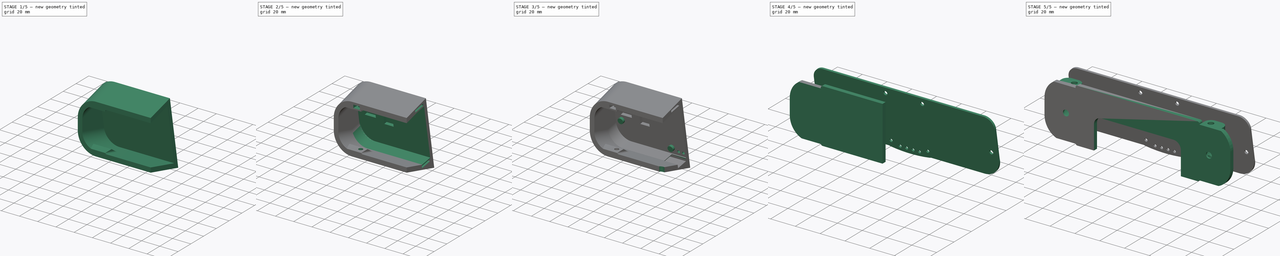
[diagram: build sequence overview — one tinted view per stage of 5, left to right]
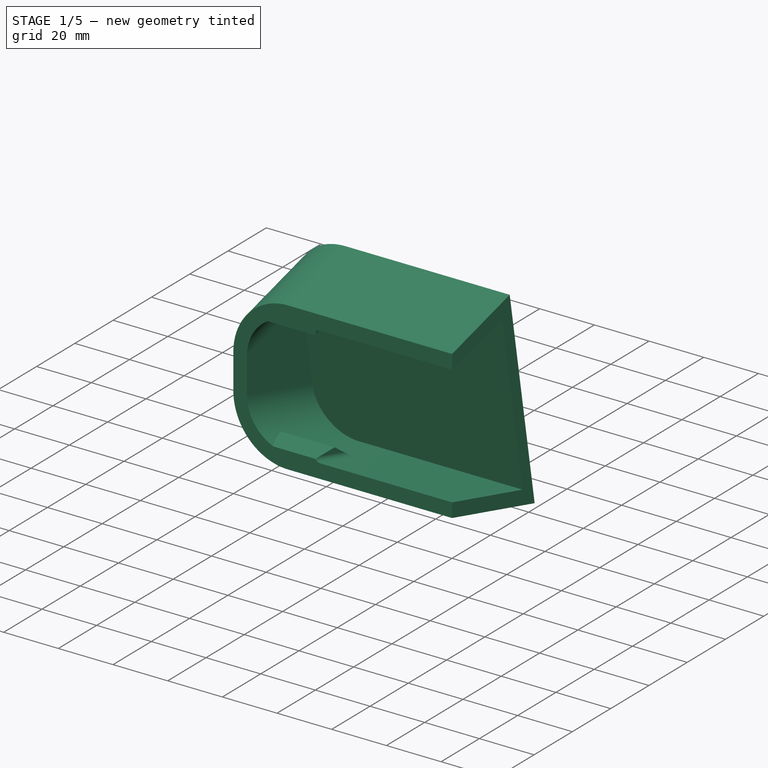
[diagram: stage 1 of 5 — iso view after this stage's code; geometry added in this stage tinted green]
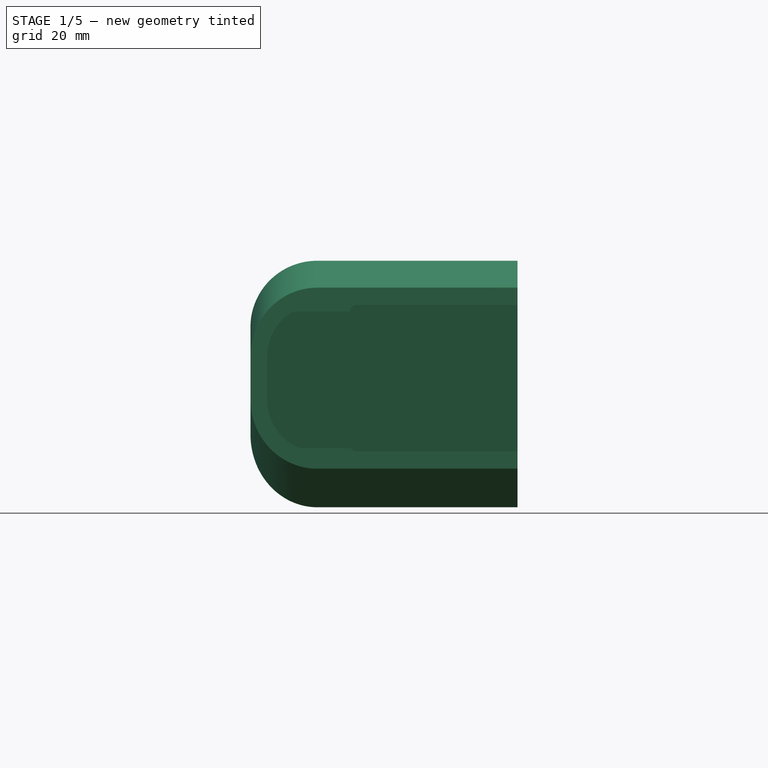
[diagram: stage 1 of 5 — front view after this stage's code; geometry added in this stage tinted green]
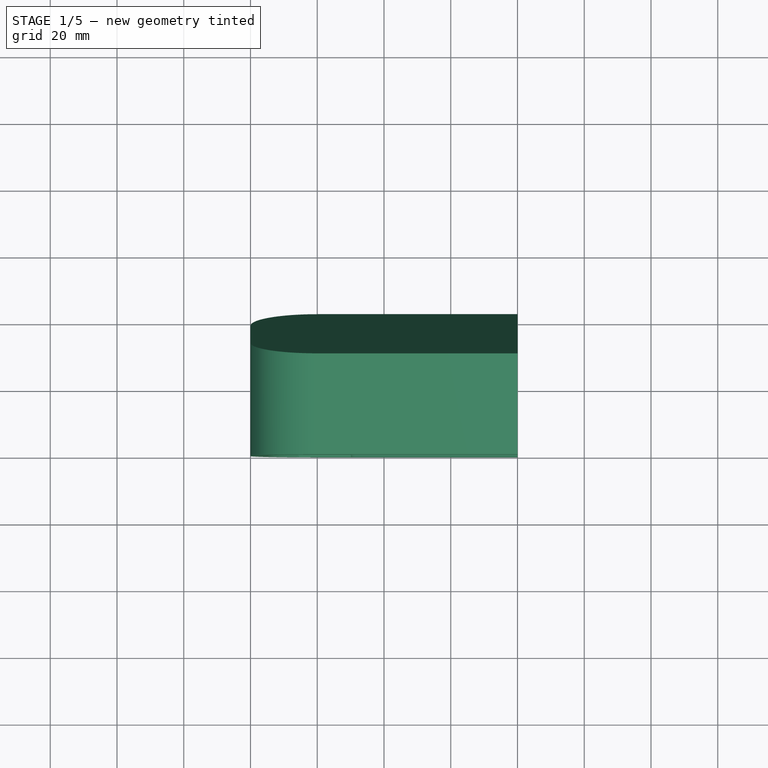
[diagram: stage 1 of 5 — top view after this stage's code; geometry added in this stage tinted green]
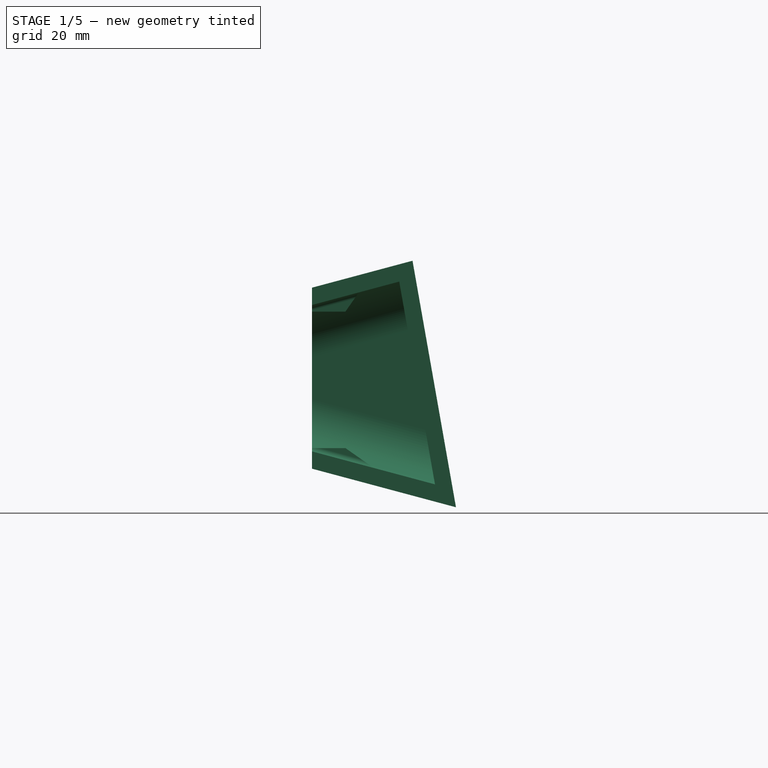
[diagram: stage 1 of 5 — right view after this stage's code; geometry added in this stage tinted green]
FCSTD DOCUMENT  (FreeCAD 0.21R33668 +26 (Git))
Label: wall-mount-v2
License: All rights reserved
LicenseURL: http://en.wikipedia.org/wiki/All_rights_reserved
objects: Sketcher::SketchObject×21, PartDesign::Pocket×12, PartDesign::Pad×9, PartDesign::SubShapeBinder×8, PartDesign::Body×4, PartDesign::Fillet×3, PartDesign::Hole×2, PartDesign::AdditivePipe×2, PartDesign::Mirrored×2, PartDesign::Thickness×1, PartDesign::SubtractivePipe×1, PartDesign::Plane×1, App::Part×1
note: 96 computed .brp shape members not serialized (recipe doc carries the construction recipe); baked Part::Feature solids carry a one-line shape summary decoded from their .brp

FEATURE [Sketcher::SketchObject] Sketch009
  FullyConstrained = true
  MapMode = 5
  Placement = pos=(0,0,0) rot=(0.57735,0.57735,0.57735;2.0944rad)
  Support = -> [YZ_Plane001]
  sketch-geometry (6):
    g0: LineSegment StartX=0 StartY=-5.18481 StartZ=0 EndX=0 EndY=49.0516 EndZ=0
    g1: LineSegment StartX=0 StartY=-5.18481 StartZ=0 EndX=43.131 EndY=-16.7417 EndZ=0
    g2: LineSegment StartX=0 StartY=49.0516 StartZ=0 EndX=30.1074 EndY=57.1188 EndZ=0
    g3: LineSegment StartX=30.1074 StartY=57.1188 StartZ=0 EndX=43.131 EndY=-16.7417 EndZ=0
    g4: GeomPoint X=40.179 Y=0 Z=0
    g5: LineSegment StartX=44.5202 StartY=-24.6202 StartZ=0 EndX=15 EndY=142.797 EndZ=0
  constraints (18):
    c: PointOnObject(g0,g-2)
    c: PointOnObject(g0,g-2)
    c: Coincident(g1,g0)
    c: Coincident(g2,g0)
    c: Coincident(g3,g2)
    c: Coincident(g3,g1)
    c: Angle(g3) = -1.39626
    c: PointOnObject(g4,g-1)
    c: PointOnObject(g4,g3)
    c: Distance(g1,g4) = 17  'PogoPinsFromBottom'
    c: Distance(g3) = 75
    c: Angle(g0,g2) = 1.8326
    c: PointOnObject(g2,g5)
    c: PointOnObject(g1,g5)
    c: Distance(g5) = 170
    c: Distance(g4,g5) = 25
    c: DistanceX(g-1,g5) = 15
    c: Angle(g1,g0) = 1.8326
FEATURE [PartDesign::Pad] Pad003
  Direction = (1,-2e-16,3e-16)
  Length = 80
  Length2 = 10
  Placement = pos=(0,0,0) rot=(0.57735,0.57735,0.57735;2.0944rad)
  Profile = -> Sketch009
  ReferenceAxis = -> Sketch009 [N_Axis]
  Reversed = true
  Type = 0
FEATURE [PartDesign::Fillet] Fillet
  Base = -> Pad003 [Edge7,Edge12]
  BaseFeature = -> Pad003
  Placement = pos=(0,0,0) rot=(0.57735,0.57735,0.57735;2.0944rad)
  Radius = 20
  SupportTransform = false
  UseAllEdges = false
FEATURE [PartDesign::Thickness] Thickness
  Base = -> Fillet [Face1,Face4]
  BaseFeature = -> Fillet
  Intersection = false
  Join = 0
  Mode = 0
  Reversed = true
  SupportTransform = false
  Value = 5
FEATURE [Sketcher::SketchObject] Sketch
  AttachmentOffset = pos=(0,0,-50) rot=(0,0,1;0rad)
  ExternalGeometry = -> [Thickness]
  FullyConstrained = true
  MapMode = 5
  Placement = pos=(-50,1.11e-14,-1.11e-14) rot=(0.57735,0.57735,0.57735;2.0944rad)
  Support = -> [Thickness]
  expr: .AttachmentOffset.Base.z = -Pad003.Length + Fillet.Radius + 10 mm
  sketch-geometry (4):
    g0: LineSegment StartX=0 StartY=-0.008433 StartZ=0 EndX=0 EndY=0.991567 EndZ=0
    g1: LineSegment StartX=0 StartY=0.991567 StartZ=0 EndX=10 EndY=0.991567 EndZ=0
    g2: LineSegment StartX=10 StartY=0.991567 StartZ=0 EndX=18.5123 EndY=-4.96878 EndZ=0
    g3: LineSegment StartX=18.5123 StartY=-4.96878 StartZ=0 EndX=0 EndY=-0.008433 EndZ=0
  constraints (11):
    c: Coincident(g0,g-3)
    c: Vertical(g0)
    c: Coincident(g1,g0)
    c: Horizontal(g1)
    c: Coincident(g2,g1)
    c: PointOnObject(g2,g-3)
    c: Coincident(g3,g2)
    c: Coincident(g3,g0)
    c: DistanceY(g0,g0) = 1
    c: DistanceX(g1,g1) = 10
    c: Angle(g-4,g2) = 0.785398
FEATURE [PartDesign::Pad] Pad
  BaseFeature = -> Thickness
  Direction = (1,-2e-16,2e-16)
  Length = 10
  Length2 = 10
  Profile = -> Sketch
  ReferenceAxis = -> Sketch [N_Axis]
  Refine = true
  Reversed = true
  Type = 2
FEATURE [Sketcher::SketchObject] Sketch010
  AttachmentOffset = pos=(0,0,-50) rot=(0,0,1;0rad)
  ExternalGeometry = -> [Pad]
  FullyConstrained = true
  MapMode = 5
  Placement = pos=(-50,1.11e-14,-1.11e-14) rot=(0.57735,0.57735,0.57735;2.0944rad)
  Support = -> [Pad]
  expr: .AttachmentOffset.Base.z = -Pad003.Length + Fillet.Radius + 10 mm
  sketch-geometry (4):
    g0: LineSegment StartX=0 StartY=43.8752 StartZ=0 EndX=0 EndY=41.8752 EndZ=0
    g1: LineSegment StartX=0 StartY=41.8752 StartZ=0 EndX=10 EndY=41.8752 EndZ=0
    g2: LineSegment StartX=10 StartY=41.8752 StartZ=0 EndX=14.0334 EndY=47.6354 EndZ=0
    g3: LineSegment StartX=0 StartY=43.8752 StartZ=0 EndX=14.0334 EndY=47.6354 EndZ=0
  constraints (11):
    c: Coincident(g0,g-3)
    c: PointOnObject(g0,g-2)
    c: Coincident(g1,g0)
    c: Horizontal(g1)
    c: Coincident(g2,g1)
    c: PointOnObject(g2,g-3)
    c: Coincident(g3,g0)
    c: Coincident(g3,g2)
    c: Vertical(g-5,g1)
    c: Angle(g2,g-4) = 0.785398
    c: DistanceY(g0,g0) = 2
FEATURE [PartDesign::Pad] Pad004
  BaseFeature = -> Pad
  Direction = (1,-2e-16,2e-16)
  Length = 10
  Length2 = 10
  Profile = -> Sketch010
  ReferenceAxis = -> Sketch010 [N_Axis]
  Refine = true
  Reversed = true
  Type = 2
FEATURE [Sketcher::SketchObject] Sketch011
  AttachmentOffset = pos=(0,0,-10) rot=(0,0,1;0rad)
  ExternalGeometry = -> [Pad004]
  FullyConstrained = true
  MapMode = 5
  Placement = pos=(2e-15,0,-9.00843) rot=(0,0,1;0rad)
  Support = -> [Pad004]
  sketch-geometry (4):
    g0: Circle CenterX=-55 CenterY=6.5 CenterZ=0 NormalX=0 NormalY=0 NormalZ=1 AngleXU=0 Radius=1.5
    g1: GeomPoint X=-60 Y=10 Z=0
    g2: GeomPoint X=-55 Y=1.83e-14 Z=0
    g3: GeomPoint X=-55 Y=5 Z=0
  constraints (8):
    c: Diameter(g0) = 3
    c: PointOnObject(g1,g-5)
    c: PointOnObject(g1,g-6)
    c: Symmetric(g-5,g-4,g2)
    c: PointOnObject(g3,g0)
    c: Vertical(g2,g3)
    c: Vertical(g3,g0)
    c: Distance(g2,g3) = 5
FEATURE [PartDesign::Fillet] Fillet001
  Base = -> Pad004 [Edge22,Edge44]
  BaseFeature = -> Pad004
  Radius = 1.6
  SupportTransform = false
  UseAllEdges = false
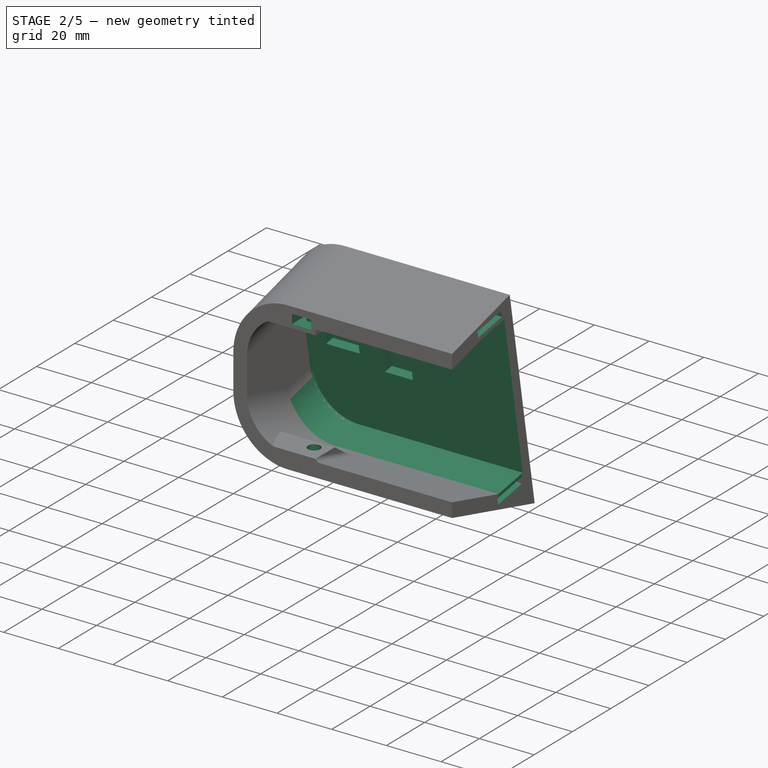
[diagram: stage 2 of 5 — iso view after this stage's code; geometry added in this stage tinted green]
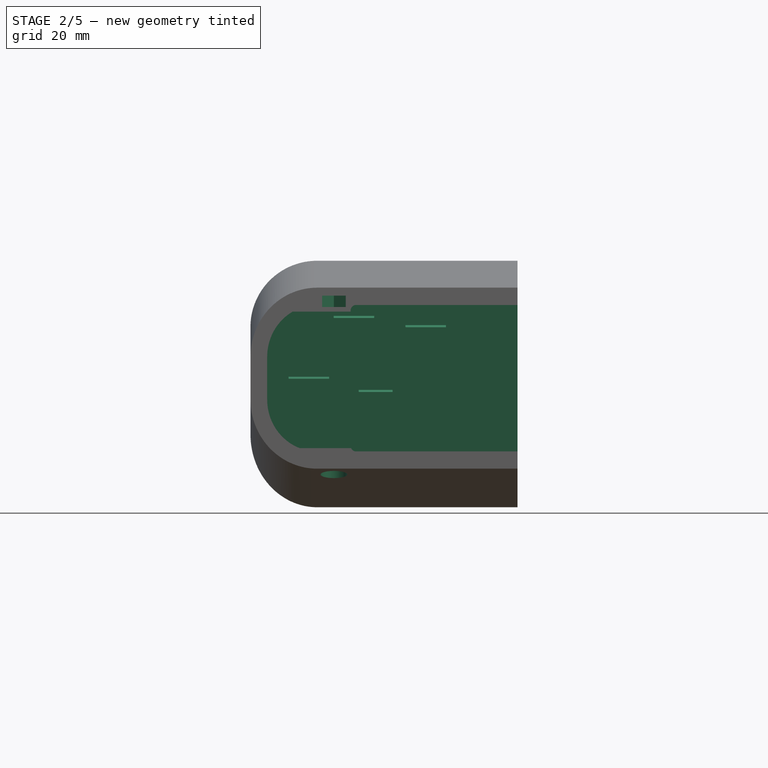
[diagram: stage 2 of 5 — front view after this stage's code; geometry added in this stage tinted green]
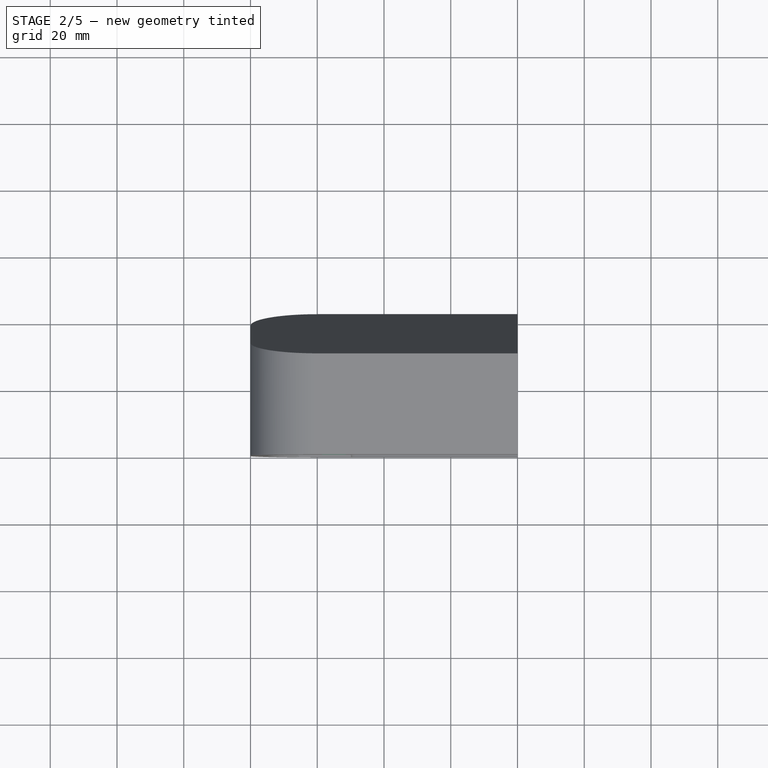
[diagram: stage 2 of 5 — top view after this stage's code; geometry added in this stage tinted green]
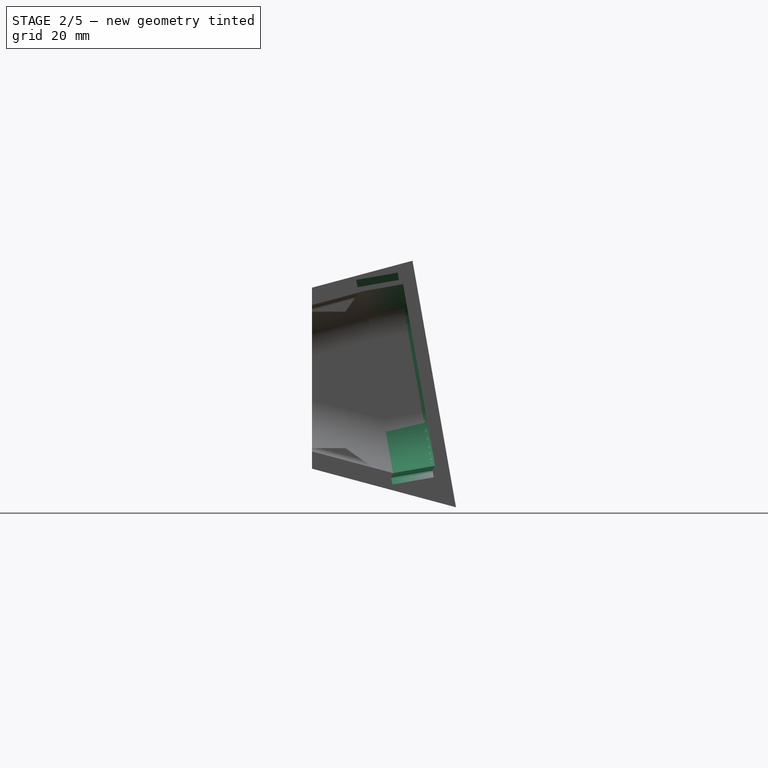
[diagram: stage 2 of 5 — right view after this stage's code; geometry added in this stage tinted green]
FEATURE [PartDesign::Hole] Hole
  BaseFeature = -> Fillet001
  CustomThreadClearance = 0
  Depth = 58.6
  DepthType = 0
  Diameter = 4.5
  DrillForDepth = false
  DrillPoint = 1
  DrillPointAngle = 155
  HoleCutCountersinkAngle = 90
  HoleCutCustomValues = false
  HoleCutDepth = 3.5
  HoleCutDiameter = 8
  HoleCutType = 3
  ModelThread = false
  Profile = -> Sketch011
  Reversed = true
  Tapered = false
  TaperedAngle = 90
  ThreadClass = 0
  ThreadDepth = 58.6
  ThreadDepthType = 0
  ThreadDirection = 0
  ThreadFit = 0
  ThreadSize = 11
  ThreadType = 1
  Threaded = false
  UseCustomThreadClearance = false
FEATURE [Sketcher::SketchObject] Sketch012
  AttachmentOffset = pos=(0,0,-1.4) rot=(0,0,1;0rad)
  ExternalGeometry = -> [Hole]
  FullyConstrained = true
  MapMode = 5
  Placement = pos=(-9.5e-15,0,43.2752) rot=(1,0,0;3.14159rad)
  Support = -> [Hole]
  sketch-geometry (10):
    g0: LineSegment StartX=-51.4493 StartY=-4.45 StartZ=0 EndX=-55 EndY=-2.4 EndZ=0
    g1: LineSegment StartX=-55 StartY=-2.4 StartZ=0 EndX=-58.5507 EndY=-4.45 EndZ=0
    g2: LineSegment StartX=-58.5507 StartY=-4.45 StartZ=0 EndX=-58.5507 EndY=-8.55 EndZ=0
    g3: LineSegment StartX=-58.5507 StartY=-8.55 StartZ=0 EndX=-55 EndY=-10.6 EndZ=0
    g4: LineSegment StartX=-55 StartY=-10.6 StartZ=0 EndX=-51.4493 EndY=-8.55 EndZ=0
    g5: LineSegment StartX=-51.4493 StartY=-8.55 StartZ=0 EndX=-51.4493 EndY=-4.45 EndZ=0
    g6: Circle CenterX=-55 CenterY=-6.5 CenterZ=0 NormalX=0 NormalY=0 NormalZ=1 AngleXU=0 Radius=4.1
    g7: LineSegment StartX=-51.4493 StartY=-4.45 StartZ=0 EndX=-51.4493 EndY=-3.38e-14 EndZ=0
    g8: LineSegment StartX=-58.5507 StartY=-3.64e-14 StartZ=0 EndX=-51.4493 EndY=-3.38e-14 EndZ=0
    g9: LineSegment StartX=-58.5507 StartY=-4.45 StartZ=0 EndX=-58.5507 EndY=-3.64e-14 EndZ=0
  constraints (24):
    c: Coincident(g0,g1)
    c: Coincident(g1,g2)
    c: Coincident(g2,g3)
    c: Coincident(g3,g4)
    c: Coincident(g4,g5)
    c: Coincident(g5,g0)
    c: Equal(g0, g1-g5) x5
    c: PointOnObject(g0,g6)
    c: PointOnObject(g1,g6)
    c: PointOnObject(g2,g6)
    c: PointOnObject(g3,g6)
    c: PointOnObject(g4,g6)
    c: PointOnObject(g5,g6)
    c: Diameter(g6) = 8.2
    c: Coincident(g7,g0)
    c: Vertical(g7)
    c: Coincident(g8,g7)
    c: Coincident(g9,g1)
    c: Coincident(g9,g8)
    c: PointOnObject(g3,g9)
    c: PointOnObject(g4,g7)
    c: PointOnObject(g7,g-4)
    c: PointOnObject(g8,g-4)
    c: Coincident(g6,g-3)
FEATURE [PartDesign::Pocket] Pocket
  BaseFeature = -> Hole
  Direction = (-2e-16,0,1)
  Length = 3.4
  Length2 = 5
  Profile = -> Sketch012
  ReferenceAxis = -> Sketch012 [N_Axis]
  Type = 0
FEATURE [Sketcher::SketchObject] Sketch025
  ExternalGeometry = -> [Pocket]
  FullyConstrained = true
  MapMode = 5
  Placement = pos=(0,0,0) rot=(0.57735,0.57735,0.57735;2.0944rad)
  Support = -> [Pocket]
  sketch-geometry (3):
    g0: LineSegment StartX=15.5057 StartY=48.03 StartZ=0 EndX=26.1309 EndY=50.877 EndZ=0
    g1: LineSegment StartX=26.1309 StartY=50.877 StartZ=0 EndX=26.2974 EndY=49.9328 EndZ=0
    g2: LineSegment StartX=26.2974 StartY=49.9328 StartZ=0 EndX=15.5057 EndY=48.03 EndZ=0
  constraints (8):
    c: Perpendicular(g2,g1)
    c: Distance(g0) = 11
    c: Coincident(g0,g-4)
    c: Coincident(g1,g0)
    c: Coincident(g2,g1)
    c: PointOnObject(g1,g-4)
    c: Coincident(g0,g2)
    c: PointOnObject(g0,g-3)
FEATURE [PartDesign::AdditivePipe] AdditivePipe
  AuxilleryCurvelinear = true
  AuxillerySpineTangent = false
  BaseFeature = -> Pocket
  Binormal = (0,0,0)
  Mode = 1
  Profile = -> Sketch025
  Refine = true
  Spine = -> Pocket [Edge39,Edge40]
  SpineTangent = false
  Transformation = 0
  Transition = 0
FEATURE [Sketcher::SketchObject] Sketch026
  ExternalGeometry = -> [AdditivePipe]
  FullyConstrained = true
  MapMode = 5
  Placement = pos=(0,0,0) rot=(0.57735,0.57735,0.57735;2.0944rad)
  Support = -> [AdditivePipe]
  sketch-geometry (3):
    g0: LineSegment StartX=36.8441 StartY=-9.88078 StartZ=0 EndX=24.2871 EndY=-6.51613 EndZ=0
    g1: LineSegment StartX=24.2871 StartY=-6.51613 StartZ=0 EndX=35.8901 EndY=-4.47021 EndZ=0
    g2: LineSegment StartX=35.8901 StartY=-4.47021 StartZ=0 EndX=36.8441 EndY=-9.88078 EndZ=0
  constraints (9):
    c: Coincident(g1,g0)
    c: Coincident(g2,g1)
    c: Coincident(g2,g0)
    c: Perpendicular(g1,g2)
    c: Coincident(g0,g-4)
    c: PointOnObject(g1,g-4)
    c: PointOnObject(g0,g-3)
    c: Distance(g2) = 5.49404
    c: Distance(g0) = 13
FEATURE [PartDesign::AdditivePipe] AdditivePipe001
  AuxilleryCurvelinear = true
  AuxillerySpineTangent = false
  BaseFeature = -> AdditivePipe
  Binormal = (0,0,0)
  Mode = 1
  Profile = -> Sketch026
  Refine = true
  Spine = -> AdditivePipe [Edge4,Edge34]
  SpineTangent = false
  Transformation = 0
  Transition = 0
FEATURE [Sketcher::SketchObject] Sketch027
  ExternalGeometry = -> [AdditivePipe001]
  FullyConstrained = true
  MapMode = 5
  Placement = pos=(-4e-16,0,0) rot=(0.57735,0.57735,0.57735;2.0944rad)
  Support = -> [AdditivePipe001]
  sketch-geometry (5):
    g0: LineSegment StartX=13.2505 StartY=51.3645 StartZ=0 EndX=13.6326 EndY=49.1979 EndZ=0
    g1: LineSegment StartX=13.6326 StartY=49.1979 StartZ=0 EndX=26.0411 EndY=51.3859 EndZ=0
    g2: LineSegment StartX=26.0411 StartY=51.3859 StartZ=0 EndX=25.6591 EndY=53.5524 EndZ=0
    g3: LineSegment StartX=25.6591 StartY=53.5524 StartZ=0 EndX=13.2505 EndY=51.3645 EndZ=0
    g4: GeomPoint X=13.0422 Y=52.5462 Z=0
  constraints (15):
    c: Coincident(g1,g0)
    c: Coincident(g2,g1)
    c: Coincident(g3,g2)
    c: Coincident(g3,g0)
    c: Distance(g2) = 2.2
    c: Distance(g0,g4) = 1.2
    c: PointOnObject(g4,g0)
    c: PointOnObject(g4,g-3)
    c: Parallel(g0,g2)
    c: Parallel(g2,g-4)
    c: Parallel(g-5,g1)
    c: Parallel(g1,g3)
    c: Distance(g2,g-4) = 5
    c: Distance(g1,g-5) = 1.47546
    c: Distance(g3) = 12.6
FEATURE [Sketcher::SketchObject] Sketch032
  ExternalGeometry = -> [AdditivePipe001,Sketch027]
  FullyConstrained = true
  MapMode = 5
  Placement = pos=(-4e-16,0,0) rot=(0.57735,0.57735,0.57735;2.0944rad)
  Support = -> [AdditivePipe001]
  sketch-geometry (6):
    g0: LineSegment StartX=36.0872 StartY=-5.58841 StartZ=0 EndX=36.4693 EndY=-7.75499 EndZ=0
    g1: LineSegment StartX=24.0607 StartY=-9.94295 StartZ=0 EndX=23.6787 EndY=-7.77638 EndZ=0
    g2: GeomPoint X=13.6326 Y=49.1979 Z=0
    g3: LineSegment StartX=23.6787 StartY=-7.77638 StartZ=0 EndX=36.0872 EndY=-5.58841 EndZ=0
    g4: LineSegment StartX=24.0607 StartY=-9.94295 StartZ=0 EndX=36.4693 EndY=-7.75499 EndZ=0
    g5: GeomPoint X=24.3733 Y=-11.7156 Z=0
  constraints (17):
    c: Coincident(g2,g-4)
    c: Coincident(g3,g1)
    c: Coincident(g3,g0)
    c: Coincident(g4,g1)
    c: Coincident(g4,g0)
    c: Distance(g0,g-7) = 5
    c: Distance(g1,g-3) = 1.63135
    c: Distance(g0,g-5) = 1.13545
    c: Equal(g1,g0)
    c: Equal(g0,g-6)
    c: Parallel(g1,g0)
    c: Parallel(g0,g-7)
    c: Parallel(g3,g-5)
    c: Equal(g3,g-4)
    c: PointOnObject(g5,g-3)
    c: PointOnObject(g5,g1)
    c: Distance(g5,g1) = 1.8
FEATURE [PartDesign::SubtractivePipe] SubtractivePipe
  AuxilleryCurvelinear = true
  AuxillerySpineTangent = false
  BaseFeature = -> AdditivePipe001
  Binormal = (0,0,0)
  Mode = 0
  Profile = -> Sketch027
  Refine = true
  Sections = -> [Sketch032]
  Spine = -> AdditivePipe001 [Edge83,Edge88,Edge49,Edge87,Edge28]
  SpineTangent = false
  Transformation = 1
  Transition = 0
FEATURE [PartDesign::SubShapeBinder] Binder
  BindCopyOnChange = 0
  BindMode = 0
  ClaimChildren = false
  Context = -> Body002 [Binder.]
  Fuse = false
  MakeFace = true
  OffsetFill = false
  OffsetIntersection = false
  OffsetJoinType = 0
  OffsetOpenResult = false
  PartialLoad = false
  Relative = true
  Support = -> [Body001[Hole.Face8]]
  _Version = 2
FEATURE [PartDesign::SubShapeBinder] Binder006
  BindCopyOnChange = 0
  BindMode = 0
  ClaimChildren = false
  Context = -> Body001 [Binder006.]
  Fuse = false
  MakeFace = true
  Offset = 0.1
  OffsetFill = false
  OffsetIntersection = false
  OffsetJoinType = 0
  OffsetOpenResult = false
  PartialLoad = false
  Relative = true
  Support = -> [Sketch017[Edge5,Edge8,Edge7,Edge6,Edge18,Edge19,Edge20,Edge17]]
  _Version = 2
FEATURE [PartDesign::SubShapeBinder] Binder007
  BindCopyOnChange = 0
  BindMode = 0
  ClaimChildren = false
  Context = -> Body001 [Binder007.]
  Fuse = false
  MakeFace = true
  OffsetFill = false
  OffsetIntersection = false
  OffsetJoinType = 0
  OffsetOpenResult = false
  PartialLoad = false
  Relative = true
  Support = -> [Sketch017[Edge1,Edge2]]
  _Version = 2
FEATURE [PartDesign::SubShapeBinder] Binder008
  BindCopyOnChange = 0
  BindMode = 0
  ClaimChildren = false
  Context = -> Body001 [Binder008.]
  Fuse = false
  MakeFace = true
  OffsetFill = false
  OffsetIntersection = false
  OffsetJoinType = 0
  OffsetOpenResult = false
  PartialLoad = false
  Relative = true
  Support = -> [Sketch017[Edge3,Edge4]]
  _Version = 2
FEATURE [PartDesign::Pocket] Pocket028
  BaseFeature = -> SubtractivePipe
  Direction = (4e-16,0.984808,0.173648)
  Length = 1
  Length2 = 5
  Profile = -> SubtractivePipe [Face26]
  Refine = true
  Type = 0
FEATURE [Sketcher::SketchObject] Sketch017
  ExternalGeometry = -> [Pocket,Pocket028]
  FullyConstrained = true
  MapMode = 5
  Placement = pos=(1.39e-14,35.0282,6.17642) rot=(1,0,0;1.74533rad)
  Support = -> [Pocket028]
  expr: Constraints[60] = 2.41 + 0.4
  expr: Constraints[63] = 1.26 + 0.4
  sketch-geometry (25):
    g0: GeomPoint X=-6.5e-15 Y=-6.59226 Z=0
    g1: Circle CenterX=-2.6 CenterY=-6.59226 CenterZ=0 NormalX=0 NormalY=0 NormalZ=1 AngleXU=0 Radius=1.405
    g2: Circle CenterX=-7.8 CenterY=-6.59226 CenterZ=0 NormalX=0 NormalY=0 NormalZ=1 AngleXU=0 Radius=1.405
    g3: Circle CenterX=-2.6 CenterY=-6.59226 CenterZ=0 NormalX=0 NormalY=0 NormalZ=1 AngleXU=0 Radius=0.83
    g4: Circle CenterX=-7.8 CenterY=-6.59226 CenterZ=0 NormalX=0 NormalY=0 NormalZ=1 AngleXU=0 Radius=0.83
    g5: LineSegment StartX=-37.5 StartY=23.9077 StartZ=0 EndX=-37.5 EndY=11.9077 EndZ=0
    g6: LineSegment StartX=-37.5 StartY=11.9077 StartZ=0 EndX=-47.5 EndY=11.9077 EndZ=0
    g7: LineSegment StartX=-47.5 StartY=11.9077 StartZ=0 EndX=-47.5 EndY=23.9077 EndZ=0
    g8: LineSegment StartX=-47.5 StartY=23.9077 StartZ=0 EndX=-37.5 EndY=23.9077 EndZ=0
    g9: GeomPoint X=-42.5 Y=17.9077 Z=0
    g10: LineSegment StartX=-68.5 StartY=25.9077 StartZ=0 EndX=-68.5 EndY=15.9077 EndZ=0
    g11: LineSegment StartX=-68.5 StartY=15.9077 StartZ=0 EndX=-56.5 EndY=15.9077 EndZ=0
    g12: LineSegment StartX=-56.5 StartY=15.9077 StartZ=0 EndX=-56.5 EndY=25.9077 EndZ=0
    g13: LineSegment StartX=-56.5 StartY=25.9077 StartZ=0 EndX=-68.5 EndY=25.9077 EndZ=0
    g14: GeomPoint X=-62.5 Y=20.9077 Z=0
    g15: LineSegment StartX=-55 StartY=44.4077 StartZ=0 EndX=-55 EndY=34.4077 EndZ=0
    g16: LineSegment StartX=-55 StartY=34.4077 StartZ=0 EndX=-43 EndY=34.4077 EndZ=0
    g17: LineSegment StartX=-43 StartY=34.4077 StartZ=0 EndX=-43 EndY=44.4077 EndZ=0
    g18: LineSegment StartX=-43 StartY=44.4077 StartZ=0 EndX=-55 EndY=44.4077 EndZ=0
    g19: GeomPoint X=-49 Y=39.4077 Z=0
    g20: LineSegment StartX=-33.5 StartY=41.6077 StartZ=0 EndX=-33.5 EndY=31.6077 EndZ=0
    g21: LineSegment StartX=-33.5 StartY=31.6077 StartZ=0 EndX=-21.5 EndY=31.6077 EndZ=0
    g22: LineSegment StartX=-21.5 StartY=31.6077 StartZ=0 EndX=-21.5 EndY=41.6077 EndZ=0
    g23: LineSegment StartX=-21.5 StartY=41.6077 StartZ=0 EndX=-33.5 EndY=41.6077 EndZ=0
    g24: GeomPoint X=-27.5 Y=36.6077 Z=0
  constraints (64):
    c: Coincident(g1,g3)
    c: Coincident(g2,g4)
    c: Coincident(g5,g6)
    c: Coincident(g6,g7)
    c: Coincident(g7,g8)
    c: Coincident(g8,g5)
    c: Horizontal(g6)
    c: Horizontal(g8)
    c: Vertical(g5)
    c: Vertical(g7)
    c: Symmetric(g6,g5,g9)
    c: Coincident(g10,g11)
    c: Coincident(g11,g12)
    c: Coincident(g12,g13)
    c: Coincident(g13,g10)
    c: Horizontal(g11)
    c: Horizontal(g13)
    c: Vertical(g10)
    c: Vertical(g12)
    c: Symmetric(g11,g10,g14)
    c: Coincident(g15,g16)
    c: Coincident(g16,g17)
    c: Coincident(g17,g18)
    c: Coincident(g18,g15)
    c: Horizontal(g16)
    c: Horizontal(g18)
    c: Vertical(g15)
    c: Vertical(g17)
    c: Symmetric(g16,g15,g19)
    c: Coincident(g20,g21)
    c: Coincident(g21,g22)
    c: Coincident(g22,g23)
    c: Coincident(g23,g20)
    c: Horizontal(g21)
    c: Horizontal(g23)
    c: Vertical(g20)
    c: Vertical(g22)
    c: Symmetric(g21,g20,g24)
    c: PointOnObject(g0,g-3)
    c: Horizontal(g1,g0)
    c: Horizontal(g0,g2)
    c: DistanceX(g1,g0) = 2.6
    c: DistanceX(g2,g1) = 5.2
    c: Equal(g8,g20)
    c: Equal(g20,g17)
    c: Equal(g17,g12)
    c: Equal(g7,g13)
    c: Equal(g13,g16)
    c: Equal(g16,g21)
    c: Distance(g6) = 10
    c: Distance(g5) = 12
    c: DistanceX(g9,g0) = 42.5
    c: DistanceY(g0,g9) = 24.5
    c: DistanceX(g24,g0) = 27.5
    c: DistanceY(g0,g24) = 43.2
    c: DistanceX(g14,g0) = 62.5
    c: DistanceY(g0,g14) = 27.5
    c: DistanceY(g0,g19) = 46
    c: DistanceX(g19,g0) = 49
    c: Equal(g1,g2)
    c: Diameter(g1) = 2.81
    c: Equal(g4,g3)
    c: Distance(g15,g-4) = 0.2
    c: Diameter(g3) = 1.66
FEATURE [PartDesign::Pocket] Pocket023
  BaseFeature = -> Pocket028
  Direction = (-4e-16,-0.984808,-0.173648)
  Length = 3.6
  Length2 = 5
  Offset = -1
  Profile = -> Binder006
  Reversed = true
  Type = 0
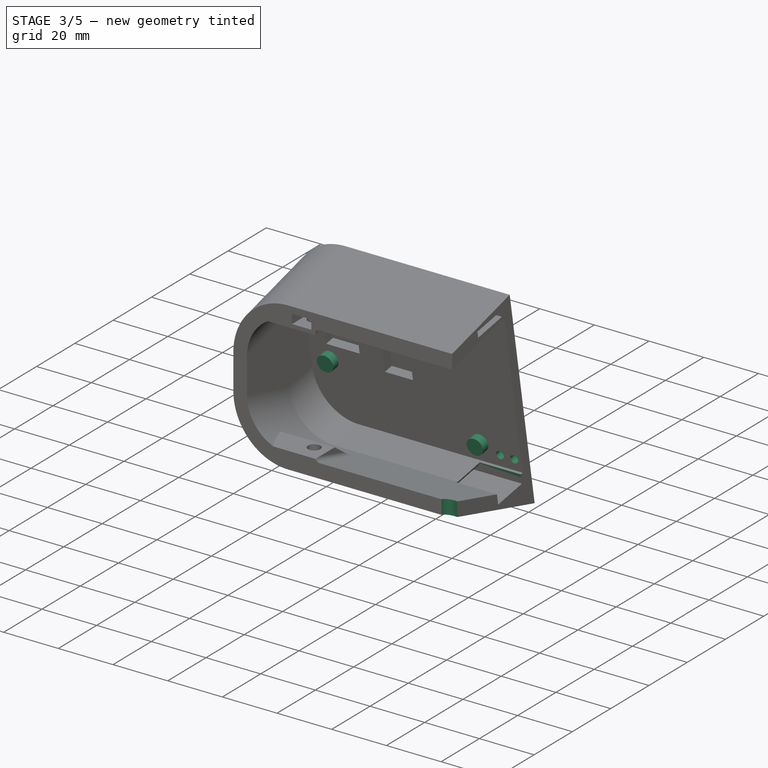
[diagram: stage 3 of 5 — iso view after this stage's code; geometry added in this stage tinted green]
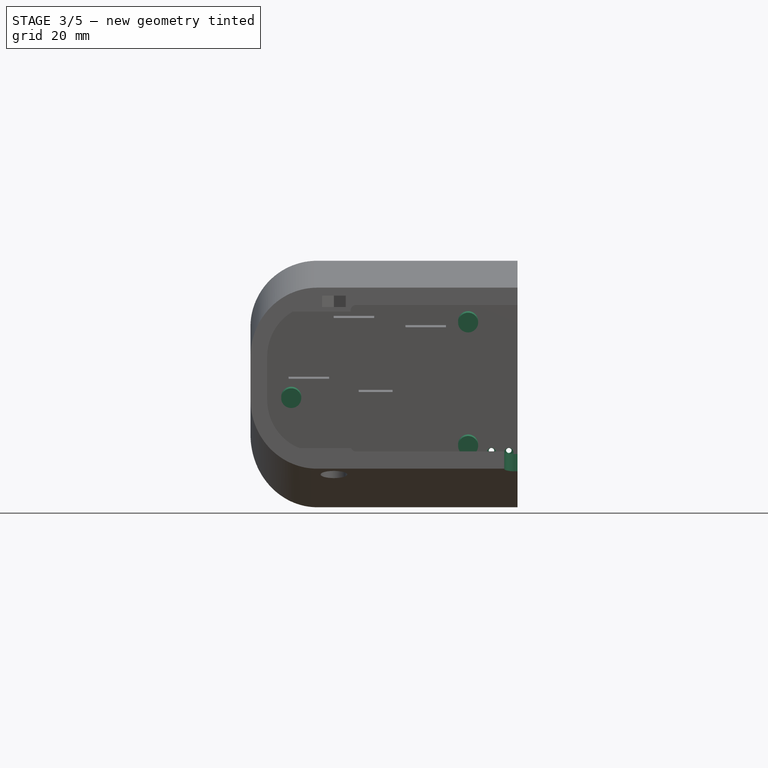
[diagram: stage 3 of 5 — front view after this stage's code; geometry added in this stage tinted green]
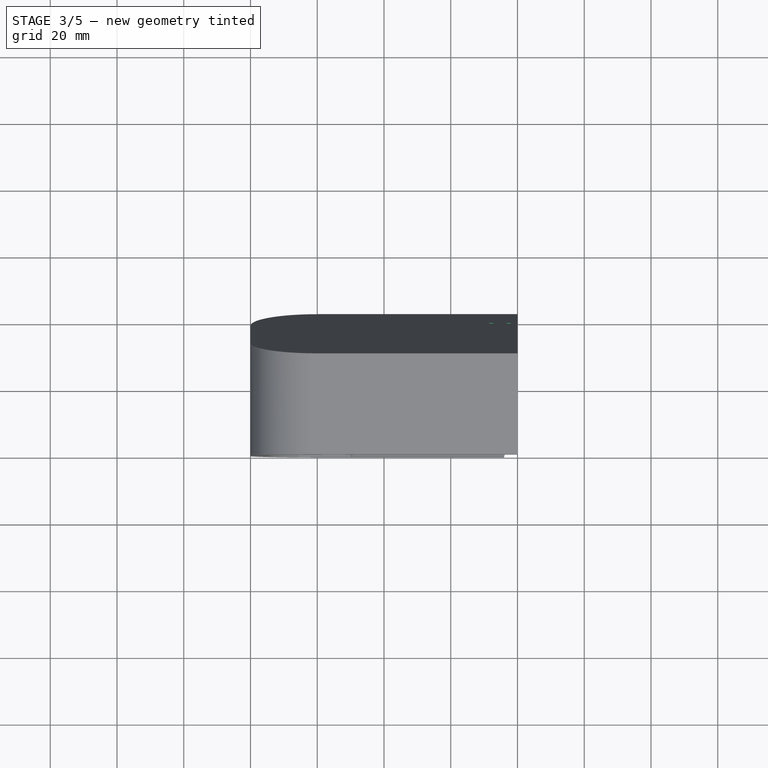
[diagram: stage 3 of 5 — top view after this stage's code; geometry added in this stage tinted green]
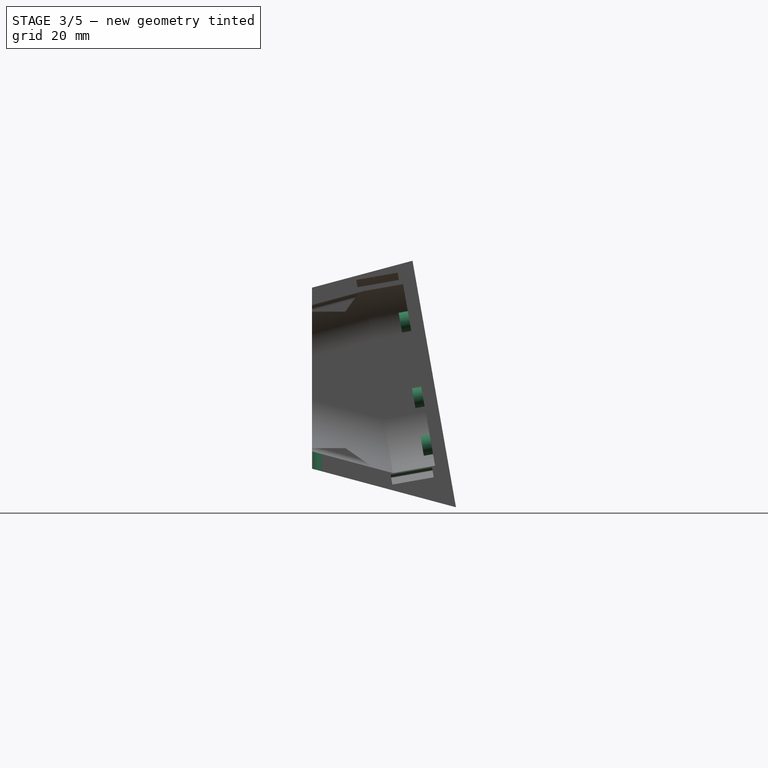
[diagram: stage 3 of 5 — right view after this stage's code; geometry added in this stage tinted green]
FEATURE [PartDesign::Pocket] Pocket024
  BaseFeature = -> Pocket023
  Direction = (-5e-16,-0.984808,-0.173648)
  Length = 3
  Length2 = 5
  Profile = -> Binder007
  Reversed = true
  Type = 0
FEATURE [PartDesign::Pocket] Pocket025
  BaseFeature = -> Pocket024
  Direction = (-5e-16,-0.984808,-0.173648)
  Length = 5
  Length2 = 5
  Profile = -> Binder008
  Refine = true
  Reversed = true
  Type = 1
FEATURE [Sketcher::SketchObject] Sketch019
  ExternalGeometry = -> [Pocket025]
  FullyConstrained = true
  MapMode = 5
  Placement = pos=(0,1e-16,0) rot=(1,0,0;1.5708rad)
  Support = -> [Pocket025]
  sketch-geometry (1):
    g0: LineSegment StartX=0 StartY=-0.008433 StartZ=0 EndX=0 EndY=43.8752 EndZ=0
  constraints (2):
    c: Coincident(g-4,g0)
    c: Coincident(g0,g-3)
FEATURE [Sketcher::SketchObject] Sketch039
  ExternalGeometry = -> [Pocket025]
  FullyConstrained = true
  MapMode = 5
  Placement = pos=(-4e-16,0,0) rot=(0.57735,0.57735,0.57735;2.0944rad)
  Support = -> [Pocket025]
  sketch-geometry (5):
    g0: LineSegment StartX=36.4693 StartY=-7.75499 StartZ=0 EndX=35.8901 EndY=-4.47021 EndZ=0
    g1: LineSegment StartX=24.0607 StartY=-9.94295 StartZ=0 EndX=23.4153 EndY=-6.28253 EndZ=0
    g2: LineSegment StartX=23.4153 StartY=-6.28253 StartZ=0 EndX=24.2871 EndY=-6.51613 EndZ=0
    g3: LineSegment StartX=24.2871 StartY=-6.51613 StartZ=0 EndX=35.8901 EndY=-4.47021 EndZ=0
    g4: LineSegment StartX=36.4693 StartY=-7.75499 StartZ=0 EndX=24.0607 EndY=-9.94295 EndZ=0
  constraints (12):
    c: Coincident(g0,g-6)
    c: PointOnObject(g0,g-4)
    c: Coincident(g1,g-5)
    c: PointOnObject(g1,g-3)
    c: Coincident(g2,g1)
    c: Coincident(g2,g-4)
    c: Coincident(g3,g2)
    c: Coincident(g3,g0)
    c: Coincident(g4,g0)
    c: Coincident(g4,g1)
    c: PointOnObject(g-5,g1)
    c: PointOnObject(g-6,g0)
FEATURE [PartDesign::Pocket] Pocket029
  BaseFeature = -> Pocket025
  Direction = (-1,-1e-16,-1e-16)
  Length = 15
  Length2 = 5
  Profile = -> Sketch039
  ReferenceAxis = -> Sketch039 [N_Axis]
  Type = 0
FEATURE [PartDesign::Fillet] Fillet002
  Base = -> Pocket029 [Edge48]
  BaseFeature = -> Pocket029
  Radius = 1
  SupportTransform = false
  UseAllEdges = false
FEATURE [Sketcher::SketchObject] Sketch030
  FullyConstrained = false
  MapMode = 5
  Placement = pos=(0,-0.00210825,-0.0078681) rot=(-1,0,0;0.261799rad)
  Support = -> [Fillet002]
  sketch-geometry (4):
    g0: LineSegment StartX=-4 StartY=0.00218262 StartZ=0 EndX=-9e-16 EndY=0.00218262 EndZ=0
    g1: LineSegment StartX=-1 StartY=3.00218 StartZ=0 EndX=0 EndY=3.00218 EndZ=0
    g2: LineSegment StartX=-9e-16 StartY=0.00218262 StartZ=0 EndX=0 EndY=3.00218 EndZ=0
    g3: ArcOfCircle CenterX=-1 CenterY=0.00218262 CenterZ=0 NormalX=0 NormalY=0 NormalZ=1 AngleXU=0 Radius=3 StartAngle=1.5708 EndAngle=3.14159
  constraints (9):
    c: Coincident(g2,g0)
    c: Coincident(g2,g1)
    c: Distance(g0) = 4
    c: PointOnObject(g1,g-2)
    c: Coincident(g3,g0)
    c: Tangent(g3,g1) = 1.5708
    c: Perpendicular(g3,g0)
    c: Parallel(g1,g0)
    c: Diameter(g3) = 6
FEATURE [PartDesign::Pocket] Pocket013
  BaseFeature = -> Fillet002
  Direction = (0,0,-1)
  Length = 5
  Length2 = 5
  Profile = -> Sketch030
  ReferenceAxis = -> Fillet002 [Edge34]
  Refine = true
  Type = 1
FEATURE [Sketcher::SketchObject] Sketch040
  ExternalGeometry = -> [Pocket013]
  FullyConstrained = true
  MapMode = 5
  Placement = pos=(1.39e-14,35.0282,6.17642) rot=(1,0,0;1.74533rad)
  Support = -> [Pocket013]
  sketch-geometry (3):
    g0: Circle CenterX=-14.8 CenterY=-4.10604 CenterZ=0 NormalX=0 NormalY=0 NormalZ=1 AngleXU=0 Radius=3
    g1: Circle CenterX=-67.8 CenterY=10.4077 CenterZ=0 NormalX=0 NormalY=0 NormalZ=1 AngleXU=0 Radius=3
    g2: Circle CenterX=-14.8 CenterY=33.4077 CenterZ=0 NormalX=0 NormalY=0 NormalZ=1 AngleXU=0 Radius=3
  constraints (9):
    c: Diameter(g0) = 6
    c: Vertical(g0,g2)
    c: Equal(g0,g1)
    c: Equal(g0,g2)
    c: Distance(g0,g-3) = 1
    c: DistanceX(g0,g-4) = 7
    c: DistanceY(g-4,g2) = 40
    c: DistanceX(g1,g-4) = 60
    c: DistanceY(g-4,g1) = 17
FEATURE [PartDesign::Pad] Pad014
  BaseFeature = -> Pocket013
  Direction = (-4e-16,-0.984808,-0.173648)
  Length = 10
  Length2 = 10
  Offset = 5.8
  Profile = -> Sketch040
  ReferenceAxis = -> Sketch040 [N_Axis]
  Type = 3
  UpToFace = -> Pocket013 [Face89]
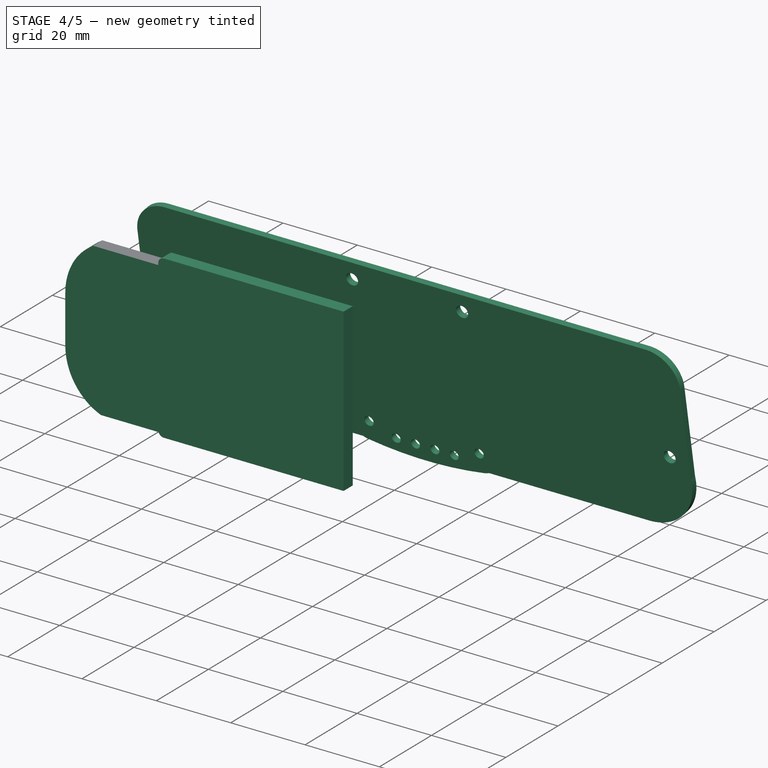
[diagram: stage 4 of 5 — iso view after this stage's code; geometry added in this stage tinted green]
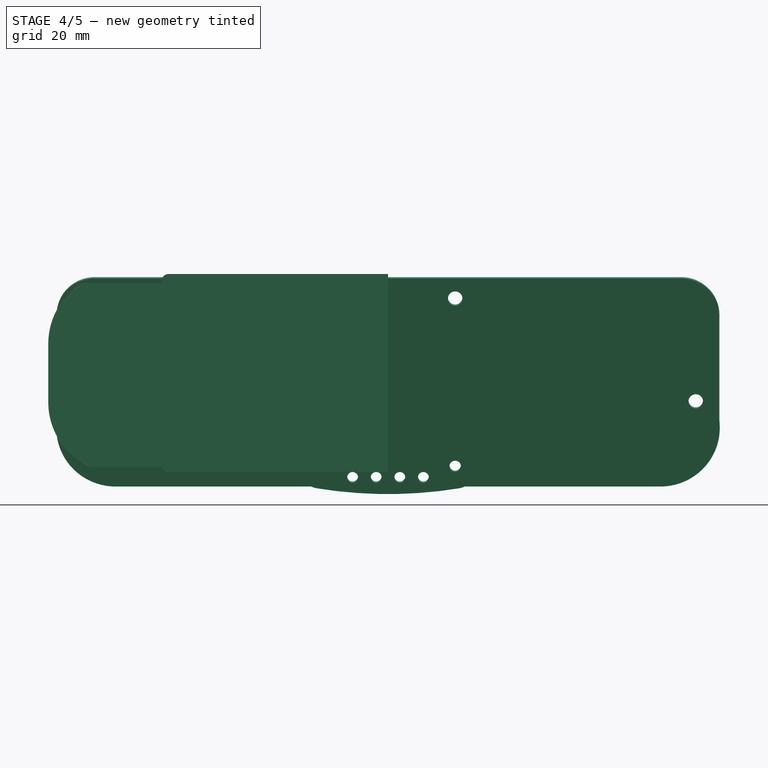
[diagram: stage 4 of 5 — front view after this stage's code; geometry added in this stage tinted green]
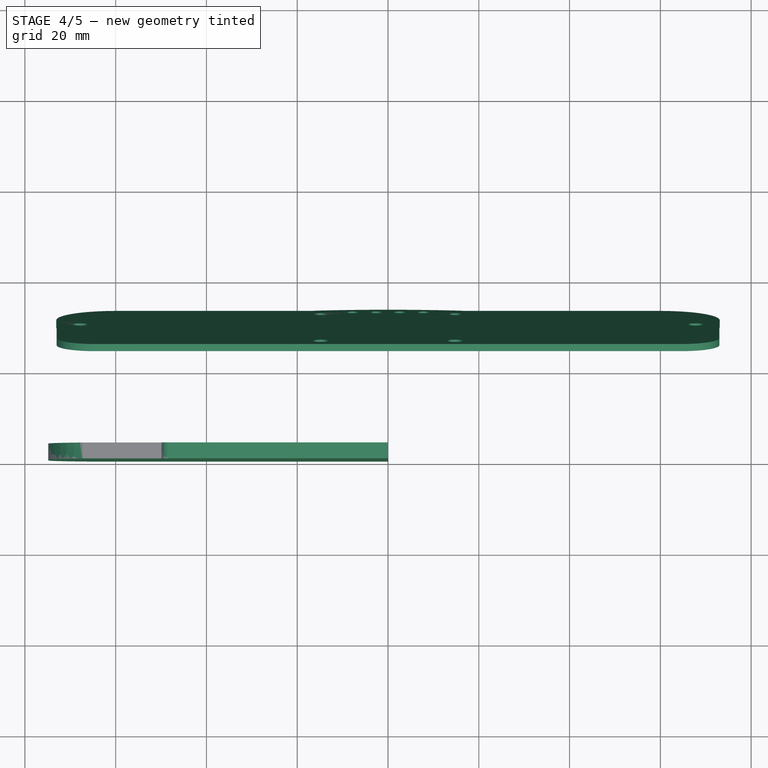
[diagram: stage 4 of 5 — top view after this stage's code; geometry added in this stage tinted green]
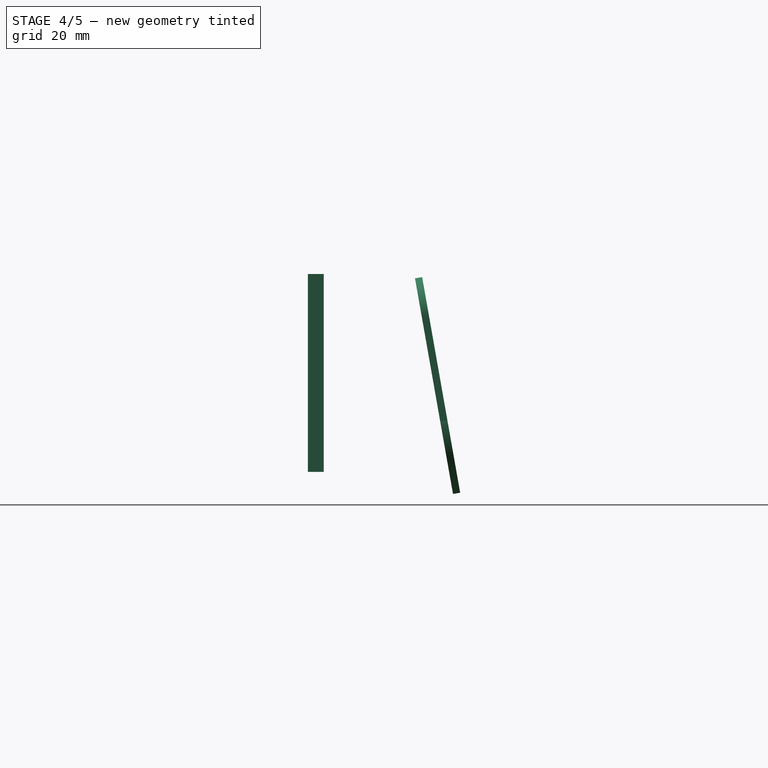
[diagram: stage 4 of 5 — right view after this stage's code; geometry added in this stage tinted green]
FEATURE [Sketcher::SketchObject] Sketch041
  ExternalGeometry = -> [Pad014]
  FullyConstrained = true
  MapMode = 5
  Placement = pos=(1.74e-14,32.2707,5.6902) rot=(1,0,0;1.74533rad)
  Support = -> [Pad014]
  sketch-geometry (3):
    g0: Circle CenterX=-14.8 CenterY=-4.10604 CenterZ=0 NormalX=0 NormalY=0 NormalZ=1 AngleXU=0 Radius=1.25
    g1: Circle CenterX=-67.8 CenterY=10.4077 CenterZ=0 NormalX=0 NormalY=0 NormalZ=1 AngleXU=0 Radius=1.25
    g2: Circle CenterX=-14.8 CenterY=33.4077 CenterZ=0 NormalX=0 NormalY=0 NormalZ=1 AngleXU=0 Radius=1.25
  constraints (6):
    c: Equal(g0,g2)
    c: Equal(g0,g1)
    c: Diameter(g0) = 2.5
    c: Coincident(g0,g-5)
    c: Coincident(g2,g-4)
    c: Coincident(g-3,g1)
FEATURE [PartDesign::Pocket] Pocket030
  BaseFeature = -> Pad014
  Direction = (5e-16,0.984808,0.173648)
  Length = 0
  Length2 = 5
  Offset = -1
  Profile = -> Sketch041
  ReferenceAxis = -> Sketch041 [N_Axis]
  Type = 3
  UpToFace = -> Pad014 [Face28]
FEATURE [Sketcher::SketchObject] Sketch043
  ExternalGeometry = -> [Fillet001]
  FullyConstrained = true
  MapMode = 5
  Placement = pos=(0,1e-16,0) rot=(1,0,0;1.5708rad)
  Support = -> [Fillet001]
  sketch-geometry (1):
    g0: LineSegment StartX=0 StartY=43.8752 StartZ=0 EndX=0 EndY=-0.008433 EndZ=0
  constraints (2):
    c: Coincident(g0,g-3)
    c: Coincident(g0,g-4)
FEATURE [PartDesign::SubShapeBinder] Binder013
  BindCopyOnChange = 0
  BindMode = 0
  ClaimChildren = false
  Context = -> Body002 [Binder013.]
  Fuse = false
  MakeFace = true
  Offset = -0.15
  OffsetFill = false
  OffsetIntersection = false
  OffsetJoinType = 0
  OffsetOpenResult = false
  PartialLoad = false
  Relative = true
  Support = -> [Body001[Fillet001.Edge1,Sketch043.Edge1,Fillet001.Edge8,Fillet001.Edge10,Fillet001.Edge12,Fillet001.Edge14,Fillet001.Edge16,Fillet001.Edge18]]
  _Version = 2
FEATURE [PartDesign::Pad] Pad005
  Direction = (4e-16,1,-2e-16)
  Length = 4
  Length2 = 10
  Profile = -> Binder013
  Type = 0
FEATURE [PartDesign::Pad] Pad011
  BaseFeature = -> Pad005
  Direction = (1,-4e-16,0)
  Length = 10
  Length2 = 10
  Profile = -> Pad005 [Face12]
  Refine = true
  Type = 3
  UpToFace = -> YZ_Plane002
FEATURE [PartDesign::Pocket] Pocket026
  BaseFeature = -> Pad011
  Direction = (4e-16,1,-2e-16)
  Length = 0.5
  Length2 = 5
  Profile = -> Pad011 [Face13]
  Type = 0
FEATURE [PartDesign::Body] Body002  label="Mouting Plate"
  Group = -> [Binder013,Binder,Pad005,Pad011,Sketch020,Pocket026,Pad008,Sketch021,Pocket022,Pocket007,Hole001,Sketch022,Pocket010,Mirrored]
  Origin = -> Origin002
  Tip = -> Mirrored
FEATURE [PartDesign::Mirrored] Mirrored001
  BaseFeature = -> Pocket030
  MirrorPlane = -> Pocket030 [Face7]
  Originals = -> [Pad003,Fillet,Thickness,Pad,Pad004,Fillet001,Hole,Pocket,AdditivePipe,AdditivePipe001,SubtractivePipe,Pocket028,Pocket023,Pocket024,Pocket025,Pocket029,Fillet002,Pocket013,Pad014,Pocket030]
  Refine = true
FEATURE [PartDesign::Body] Body001  label="Housing"
  Group = -> [Sketch009,Pad003,Fillet,Thickness,Sketch,Pad,Sketch010,Pad004,Sketch011,Fillet001,Sketch043,Hole,Sketch012,Pocket,Sketch025,Sketch026,AdditivePipe,AdditivePipe001,Sketch027,Sketch032,SubtractivePipe,Pocket028,Sketch017,Binder006,Pocket023,Binder007,Pocket024,Binder008,Pocket025,Sketch019,Sketch030,Sketch039,Pocket029,Fillet002,Pocket013,Sketch040,Pad014,Sketch041,Pocket030,Mirrored001]
  Origin = -> Origin001
  Tip = -> Mirrored001
FEATURE [PartDesign::SubShapeBinder] Binder014
  BindCopyOnChange = 0
  BindMode = 0
  ClaimChildren = false
  Context = -> Body003 [Binder014.]
  Fuse = false
  MakeFace = true
  OffsetFill = false
  OffsetIntersection = false
  OffsetJoinType = 0
  OffsetOpenResult = false
  PartialLoad = false
  Relative = true
  Support = -> [Body001[Mirrored001.Face154,Mirrored001.Face162,Mirrored001.Face166,Mirrored001.Face63,Mirrored001.Face170,Mirrored001.Face158,Mirrored001.Face150]]
  _Version = 2
FEATURE [PartDesign::Plane] DatumPlane
  Length = 167.236
  MapMode = 45
  Placement = pos=(6.1e-15,29.7267,20.1185) rot=(-1,0,0;1.39626rad)
  ResizeMode = 0
  Support = -> [Binder014]
  Width = 98.4577
FEATURE [PartDesign::SubShapeBinder] Binder015
  BindCopyOnChange = 0
  BindMode = 0
  ClaimChildren = false
  Context = -> Body003 [Binder015.]
  Fuse = false
  MakeFace = true
  Offset = -2
  OffsetFill = false
  OffsetIntersection = false
  OffsetJoinType = 0
  OffsetOpenResult = false
  PartialLoad = false
  Relative = true
  Support = -> [Binder014[Edge16,Edge15,Edge14,Edge13,Edge20,Edge19,Edge18,Edge17]]
  _Version = 2
FEATURE [Sketcher::SketchObject] Sketch044
  ExternalGeometry = -> [Binder014,Binder015]
  FullyConstrained = true
  MapMode = 5
  Placement = pos=(6.1e-15,29.7267,20.1185) rot=(-1,0,0;1.39626rad)
  Support = -> [DatumPlane]
  sketch-geometry (20):
    g0: ArcOfCircle CenterX=-64.6142 CenterY=-14.8996 CenterZ=0 NormalX=0 NormalY=0 NormalZ=1 AngleXU=0 Radius=8.3858 StartAngle=3.14159 EndAngle=4.71239
    g1: ArcOfCircle CenterX=64.6142 CenterY=-14.8996 CenterZ=0 NormalX=0 NormalY=0 NormalZ=1 AngleXU=0 Radius=8.3858 StartAngle=4.71239 EndAngle=6.28319
    g2: ArcOfCircle CenterX=60 CenterY=10.2028 CenterZ=0 NormalX=0 NormalY=0 NormalZ=1 AngleXU=0 Radius=13.0826 StartAngle=6.17074 EndAngle=7.85398
    g3: ArcOfCircle CenterX=-60 CenterY=10.2028 CenterZ=0 NormalX=0 NormalY=0 NormalZ=1 AngleXU=0 Radius=13.0826 StartAngle=1.5708 EndAngle=3.25404
    g4: LineSegment StartX=-73 StartY=8.73472 StartZ=0 EndX=-73 EndY=-14.8996 EndZ=0
    g5: LineSegment StartX=73 StartY=8.73472 StartZ=0 EndX=73 EndY=-14.8996 EndZ=0
    g6: LineSegment StartX=-60 StartY=23.2854 StartZ=0 EndX=60 EndY=23.2854 EndZ=0
    g7: LineSegment StartX=-64.6142 StartY=-23.2854 StartZ=0 EndX=64.6142 EndY=-23.2854 EndZ=0
    g8: LineSegment StartX=-14.8 StartY=-21.7569 StartZ=0 EndX=-14.8 EndY=-23.2854 EndZ=0
    g9: LineSegment StartX=-14.8 StartY=23.2854 StartZ=0 EndX=-14.8 EndY=21.7569 EndZ=0
    g10: Circle CenterX=-67.8 CenterY=4.24311 CenterZ=0 NormalX=0 NormalY=0 NormalZ=1 AngleXU=0 Radius=1.6
    g11: Circle CenterX=-14.8 CenterY=-18.7569 CenterZ=0 NormalX=0 NormalY=0 NormalZ=1 AngleXU=0 Radius=1.6
    g12: Circle CenterX=-14.8 CenterY=18.7569 CenterZ=0 NormalX=0 NormalY=0 NormalZ=1 AngleXU=0 Radius=1.6
    g13: Circle CenterX=14.8 CenterY=-18.7569 CenterZ=0 NormalX=0 NormalY=0 NormalZ=1 AngleXU=0 Radius=1.6
    g14: Circle CenterX=14.8 CenterY=18.7569 CenterZ=0 NormalX=0 NormalY=0 NormalZ=1 AngleXU=0 Radius=1.6
    g15: Circle CenterX=67.8 CenterY=4.24311 CenterZ=0 NormalX=0 NormalY=0 NormalZ=1 AngleXU=0 Radius=1.6
    g16: Circle CenterX=7.8 CenterY=21.2431 CenterZ=0 NormalX=0 NormalY=0 NormalZ=1 AngleXU=0 Radius=1.2
    g17: Circle CenterX=2.6 CenterY=21.2431 CenterZ=0 NormalX=0 NormalY=0 NormalZ=1 AngleXU=0 Radius=1.2
    g18: Circle CenterX=-2.6 CenterY=21.2431 CenterZ=0 NormalX=0 NormalY=0 NormalZ=1 AngleXU=0 Radius=1.2
    g19: Circle CenterX=-7.8 CenterY=21.2431 CenterZ=0 NormalX=0 NormalY=0 NormalZ=1 AngleXU=0 Radius=1.2
  constraints (44):
    c: Coincident(g0,g-12)
    c: Coincident(g1,g-13)
    c: Coincident(g2,g-13)
    c: Coincident(g2,g-9)
    c: Coincident(g3,g-11)
    c: Coincident(g3,g-12)
    c: Coincident(g4,g3)
    c: Coincident(g5,g2)
    c: Tangent(g6,g2) = 1.5708
    c: Tangent(g6,g3) = 1.5708
    c: Horizontal(g7)
    c: Tangent(g5,g1) = 1.5708
    c: Tangent(g7,g1) = -1.5708
    c: Tangent(g7,g0) = -1.5708
    c: Tangent(g4,g0) = -1.5708
    c: PointOnObject(g8,g-5)
    c: PointOnObject(g8,g7)
    c: Perpendicular(g7,g8)
    c: PointOnObject(g9,g6)
    c: PointOnObject(g9,g-4)
    c: Perpendicular(g6,g9)
    c: Equal(g9,g8)
    c: Perpendicular(g-4,g9)
    c: Perpendicular(g-5,g8)
    c: Coincident(g10,g-3)
    c: Coincident(g11,g-5)
    c: Coincident(g12,g-4)
    c: Coincident(g13,g-6)
    c: Coincident(g14,g-7)
    c: Coincident(g15,g-8)
    c: Equal(g15,g13)
    c: Equal(g15,g14)
    c: Equal(g15,g12)
    c: Equal(g15,g11)
    c: Equal(g15,g10)
    c: Diameter(g15) = 3.2
    c: Coincident(g16,g-14)
    c: Coincident(g17,g-15)
    c: Coincident(g18,g-16)
    c: Coincident(g19,g-17)
    c: Equal(g19,g18)
    c: Equal(g19,g17)
    c: Equal(g19,g16)
    c: Diameter(g19) = 2.4
FEATURE [PartDesign::Pad] Pad015
  Direction = (0,0.984808,0.173648)
  Length = 1.6
  Length2 = 10
  Placement = pos=(7e-15,29.7267,20.1185) rot=(-1,0,0;1.39626rad)
  Profile = -> Sketch044
  ReferenceAxis = -> Sketch044 [N_Axis]
  Reversed = true
  Type = 0
FEATURE [PartDesign::Body] Body003  label="Board"
  Group = -> [Binder014,DatumPlane,Sketch044,Binder015,Pad015]
  Origin = -> Origin003
  Tip = -> Pad015
FEATURE [App::Part] Part
  Origin = -> Origin
FEATURE [PartDesign::SubShapeBinder] Binder016
  BindCopyOnChange = 0
  BindMode = 0
  ClaimChildren = false
  Context = -> Body [Binder016.]
  Fuse = false
  MakeFace = true
  OffsetFill = false
  OffsetIntersection = false
  OffsetJoinType = 0
  OffsetOpenResult = false
  PartialLoad = false
  Relative = true
  Support = -> [Body001[Mirrored001.Face154,Mirrored001.Edge262,Mirrored001.Edge261,Mirrored001.Edge263,Mirrored001.Edge264,Mirrored001.Face162]]
  _Version = 2
FEATURE [Sketcher::SketchObject] Sketch045
  ExternalGeometry = -> [Binder016]
  FullyConstrained = true
  MapMode = 5
  Placement = pos=(1.74e-14,32.2707,5.6902) rot=(1,0,0;1.74533rad)
  Support = -> [Binder016]
  sketch-geometry (12):
    g0: ArcOfCircle CenterX=-14.8 CenterY=-4.10604 CenterZ=0 NormalX=0 NormalY=0 NormalZ=1 AngleXU=0 Radius=5 StartAngle=1.40675 EndAngle=4.54835
    g1: ArcOfCircle CenterX=14.8 CenterY=-4.10604 CenterZ=0 NormalX=0 NormalY=0 NormalZ=1 AngleXU=0 Radius=5 StartAngle=4.87643 EndAngle=8.01803
    g2: ArcOfCircle CenterX=-7.95e-14 CenterY=85.3031 CenterZ=0 NormalX=0 NormalY=0 NormalZ=1 AngleXU=0 Radius=95.6258 StartAngle=4.54835 EndAngle=4.87643
    g3: ArcOfCircle CenterX=-7.95e-14 CenterY=85.3031 CenterZ=0 NormalX=0 NormalY=0 NormalZ=1 AngleXU=0 Radius=85.6258 StartAngle=4.54835 EndAngle=4.87643
    g4: Circle CenterX=-7.8 CenterY=-6.59226 CenterZ=0 NormalX=0 NormalY=0 NormalZ=1 AngleXU=0 Radius=1.6
    g5: LineSegment StartX=-8.08756 StartY=-9.98008 StartZ=0 EndX=-7.93532 EndY=-8.18653 EndZ=0
    g6: Circle CenterX=-7.8 CenterY=-6.59226 CenterZ=0 NormalX=0 NormalY=0 NormalZ=1 AngleXU=0 Radius=1.405
    g7: Circle CenterX=-2.6 CenterY=-6.59226 CenterZ=0 NormalX=0 NormalY=0 NormalZ=1 AngleXU=0 Radius=1.405
    g8: Circle CenterX=2.6 CenterY=-6.59226 CenterZ=0 NormalX=0 NormalY=0 NormalZ=1 AngleXU=0 Radius=1.405
    g9: Circle CenterX=7.8 CenterY=-6.59226 CenterZ=0 NormalX=0 NormalY=0 NormalZ=1 AngleXU=0 Radius=1.405
    g10: Circle CenterX=-14.8 CenterY=-4.10604 CenterZ=0 NormalX=0 NormalY=0 NormalZ=1 AngleXU=0 Radius=1.25
    g11: Circle CenterX=14.8 CenterY=-4.10604 CenterZ=0 NormalX=0 NormalY=0 NormalZ=1 AngleXU=0 Radius=1.25
  constraints (27):
    c: Coincident(g0,g-4)
    c: Coincident(g1,g-6)
    c: Tangent(g2,g1) = -1.5708
    c: Tangent(g2,g0) = -1.5708
    c: Diameter(g0) = 10
    c: Tangent(g3,g1) = 1.5708
    c: Coincident(g2,g3)
    c: Diameter(g4) = 3.2
    c: PointOnObject(g5,g2)
    c: PointOnObject(g5,g4)
    c: Perpendicular(g4,g5)
    c: Perpendicular(g2,g5)
    c: Coincident(g4,g-10)
    c: Distance(g5) = 1.8
    c: Tangent(g3,g0) = 1.5708
    c: Coincident(g6,g4)
    c: Coincident(g7,g-9)
    c: Coincident(g8,g-8)
    c: Coincident(g9,g-7)
    c: Equal(g9,g-7)
    c: Equal(g8,g-8)
    c: Equal(g-9,g7)
    c: Equal(g6,g-10)
    c: Coincident(g10,g0)
    c: Coincident(g11,g1)
    c: Equal(g10,g-4)
    c: Equal(g-5,g11)
FEATURE [PartDesign::Pad] Pad016
  Direction = (-5e-16,-0.984808,-0.173648)
  Length = 1.6
  Length2 = 10
  Profile = -> Sketch045
  ReferenceAxis = -> Sketch045 [N_Axis]
  Type = 0
FEATURE [PartDesign::Body] Body
  Group = -> [Binder016,Sketch045,Pad016]
  Origin = -> Origin004
  Tip = -> Pad016
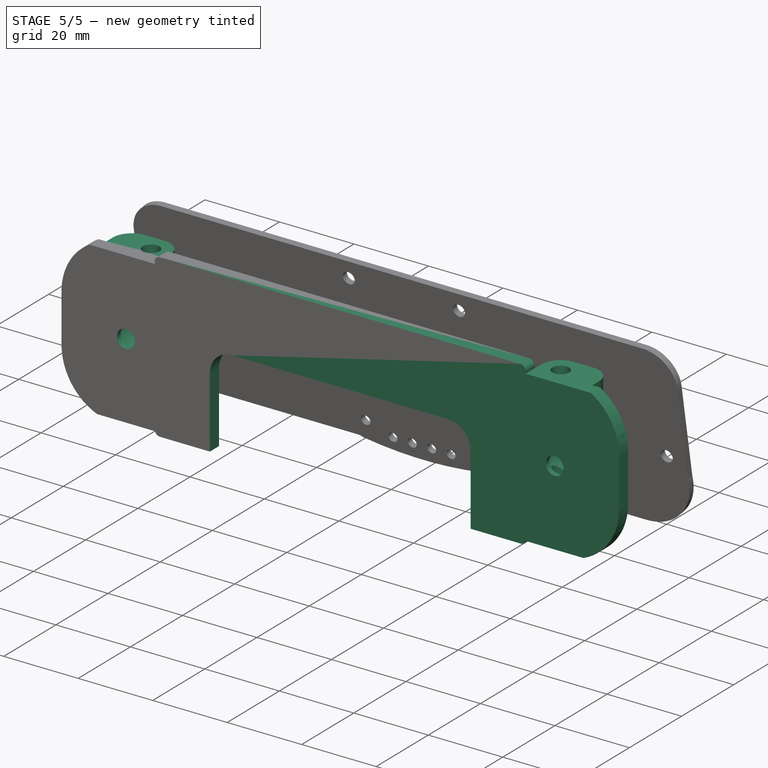
[diagram: stage 5 of 5 — iso view after this stage's code; geometry added in this stage tinted green]
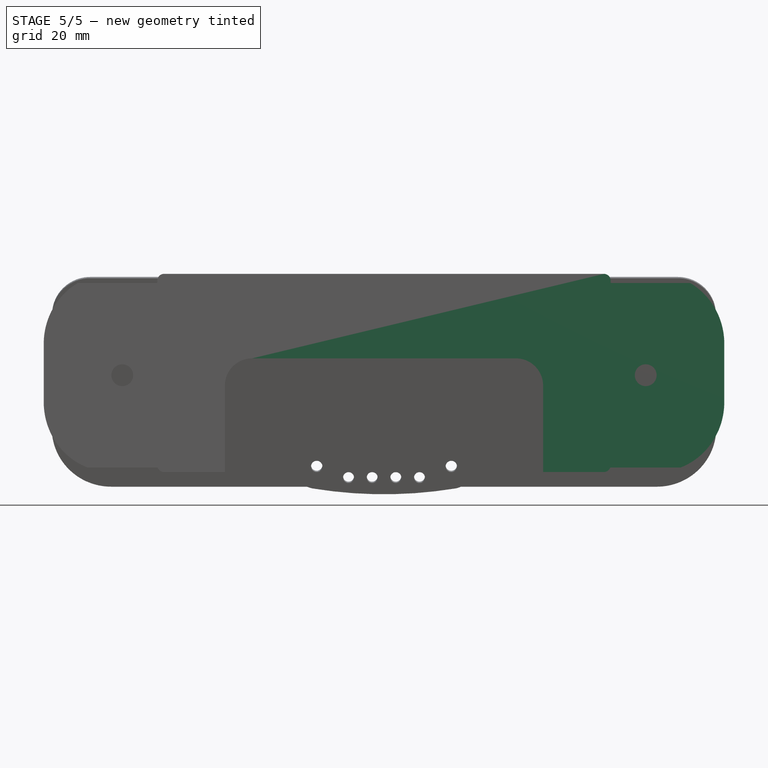
[diagram: stage 5 of 5 — front view after this stage's code; geometry added in this stage tinted green]
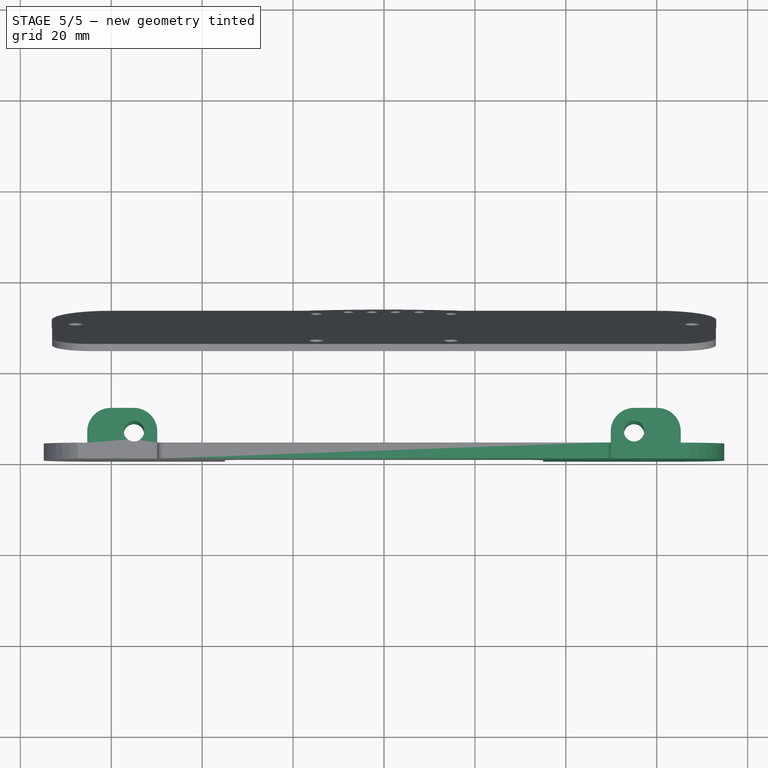
[diagram: stage 5 of 5 — top view after this stage's code; geometry added in this stage tinted green]
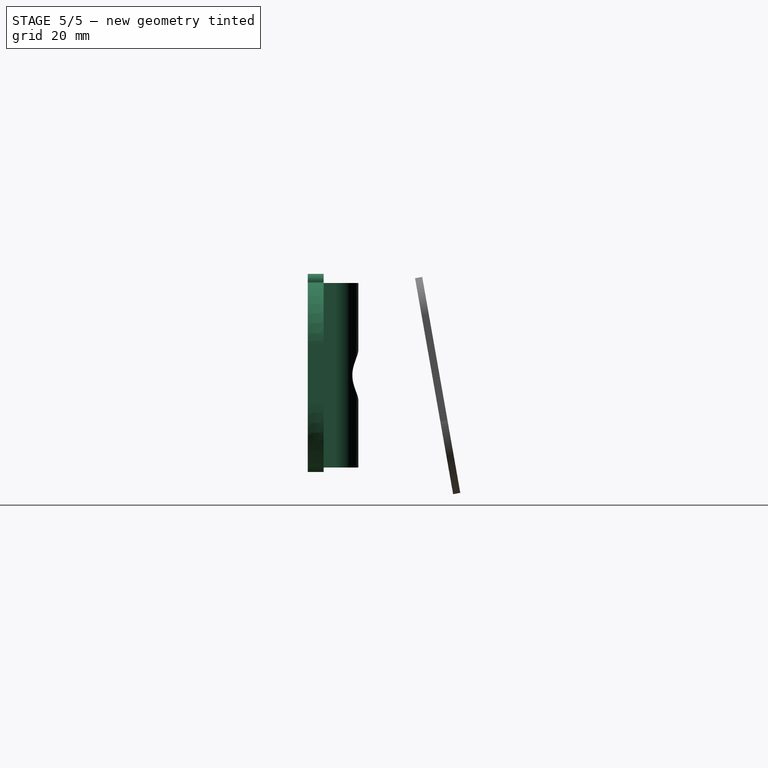
[diagram: stage 5 of 5 — right view after this stage's code; geometry added in this stage tinted green]
FEATURE [Sketcher::SketchObject] Sketch020
  ExternalGeometry = -> [Binder,Pocket026]
  FullyConstrained = true
  MapMode = 5
  Placement = pos=(-3e-16,3e-16,1.14157) rot=(1,0,0;3.14159rad)
  Support = -> [Pocket026]
  sketch-geometry (6):
    g0: LineSegment StartX=-65.2674 StartY=-0.5 StartZ=0 EndX=-65.2674 EndY=-6.5 EndZ=0
    g1: LineSegment StartX=-60.1364 StartY=-11.631 StartZ=0 EndX=-55 EndY=-11.631 EndZ=0
    g2: LineSegment StartX=-65.2674 StartY=-0.5 StartZ=0 EndX=-49.869 EndY=-0.5 EndZ=0
    g3: LineSegment StartX=-49.869 StartY=-0.5 StartZ=0 EndX=-49.869 EndY=-6.5 EndZ=0
    g4: ArcOfCircle CenterX=-55 CenterY=-6.5 CenterZ=0 NormalX=0 NormalY=0 NormalZ=1 AngleXU=0 Radius=5.131 StartAngle=4.71239 EndAngle=6.28319
    g5: ArcOfCircle CenterX=-60.1364 CenterY=-6.5 CenterZ=0 NormalX=0 NormalY=0 NormalZ=1 AngleXU=0 Radius=5.131 StartAngle=3.14159 EndAngle=4.71239
  constraints (13):
    c: Coincident(g2,g0)
    c: Coincident(g2,g3)
    c: Coincident(g2,g-4)
    c: Perpendicular(g2,g3)
    c: Perpendicular(g2,g0)
    c: Tangent(g3,g4) = 1.5708
    c: Coincident(g0,g-4)
    c: Tangent(g5,g0) = -1.5708
    c: Equal(g5,g4)
    c: Coincident(g4,g-3)
    c: Horizontal(g0,g3)
    c: Tangent(g5,g1) = -1.5708
    c: Tangent(g1,g4) = -1.5708
FEATURE [PartDesign::Pad] Pad008
  BaseFeature = -> Pocket026
  Direction = (2e-16,-2e-16,-1)
  Length = 10
  Length2 = 10
  Profile = -> Sketch020
  ReferenceAxis = -> Sketch020 [N_Axis]
  Refine = true
  Reversed = true
  Type = 3
  UpToFace = -> Pocket026 [Face11]
FEATURE [Sketcher::SketchObject] Sketch021
  ExternalGeometry = -> [Pad008]
  FullyConstrained = true
  MapMode = 5
  Placement = pos=(1.5e-15,4,-1e-15) rot=(0,0.707107,0.707107;3.14159rad)
  Support = -> [Pad008]
  sketch-geometry (5):
    g0: Circle CenterX=57.5682 CenterY=21.4334 CenterZ=0 NormalX=0 NormalY=0 NormalZ=1 AngleXU=0 Radius=6
    g1: LineSegment StartX=65.2674 StartY=1.14157 StartZ=0 EndX=57.5682 EndY=21.4334 EndZ=0
    g2: LineSegment StartX=57.5682 StartY=21.4334 StartZ=0 EndX=49.869 EndY=41.7252 EndZ=0
    g3: LineSegment StartX=65.2674 StartY=41.7252 StartZ=0 EndX=57.5682 EndY=21.4334 EndZ=0
    g4: LineSegment StartX=57.5682 StartY=21.4334 StartZ=0 EndX=49.869 EndY=1.14157 EndZ=0
  constraints (11):
    c: Coincident(g1,g0)
    c: Coincident(g2,g0)
    c: Equal(g2,g1)
    c: Diameter(g0) = 12
    c: Coincident(g3,g0)
    c: Coincident(g4,g0)
    c: Equal(g4,g3)
    c: Coincident(g3,g-4)
    c: Coincident(g2,g-3)
    c: Coincident(g4,g-3)
    c: Coincident(g1,g-4)
FEATURE [PartDesign::Pocket] Pocket022
  BaseFeature = -> Pad008
  Direction = (2e-16,0,-1)
  Length = 5
  Length2 = 5
  Profile = -> Binder [Edge6]
  Reversed = true
  Type = 1
FEATURE [PartDesign::Pocket] Pocket007
  BaseFeature = -> Pocket022
  Direction = (-4e-16,-1,2e-16)
  Length = 5
  Length2 = 5
  Profile = -> Sketch021
  ReferenceAxis = -> Sketch021 [N_Axis]
  Refine = true
  Reversed = true
  Type = 1
FEATURE [PartDesign::Hole] Hole001
  BaseFeature = -> Pocket007
  CustomThreadClearance = 0
  Depth = 182.341
  DepthType = 1
  Diameter = 4.8
  DrillForDepth = false
  DrillPoint = 1
  DrillPointAngle = 118
  HoleCutCountersinkAngle = 90
  HoleCutCustomValues = false
  HoleCutDepth = 0
  HoleCutDiameter = 9
  HoleCutType = 2
  ModelThread = false
  Profile = -> Sketch021
  Tapered = false
  TaperedAngle = 90
  ThreadClass = 0
  ThreadDepth = 182.341
  ThreadDepthType = 0
  ThreadDirection = 0
  ThreadFit = 2
  ThreadSize = 11
  ThreadType = 1
  Threaded = false
  UseCustomThreadClearance = false
FEATURE [Sketcher::SketchObject] Sketch022
  ExternalGeometry = -> [Hole001]
  FullyConstrained = true
  MapMode = 5
  Placement = pos=(1.5e-15,4,-1e-15) rot=(0,0.707107,0.707107;3.14159rad)
  Support = -> [Hole001]
  sketch-geometry (5):
    g0: LineSegment StartX=1.1e-15 StartY=0.141567 StartZ=0 EndX=35 EndY=0.141567 EndZ=0
    g1: LineSegment StartX=35 StartY=0.141567 StartZ=0 EndX=35 EndY=19.1416 EndZ=0
    g2: LineSegment StartX=29 StartY=25.1416 StartZ=0 EndX=3.6e-15 EndY=25.1416 EndZ=0
    g3: LineSegment StartX=3.6e-15 StartY=25.1416 StartZ=0 EndX=1.1e-15 EndY=0.141567 EndZ=0
    g4: ArcOfCircle CenterX=29 CenterY=19.1416 CenterZ=0 NormalX=0 NormalY=0 NormalZ=1 AngleXU=0 Radius=6 StartAngle=2e-16 EndAngle=1.5708
  constraints (13):
    c: Coincident(g0,g1)
    c: Coincident(g2,g3)
    c: Coincident(g3,g0)
    c: Horizontal(g2)
    c: Tangent(g2,g4) = -1.5708
    c: Tangent(g1,g4) = -1.5708
    c: PointOnObject(g0,g-3)
    c: Vertical(g1)
    c: PointOnObject(g2,g-4)
    c: Coincident(g0,g-4)
    c: Diameter(g4) = 12
    c: DistanceY(g3,g3) = 25
    c: DistanceX(g0,g0) = 35
FEATURE [PartDesign::Pocket] Pocket010
  BaseFeature = -> Hole001
  Direction = (-4e-16,-1,2e-16)
  Length = 5
  Length2 = 5
  Profile = -> Sketch022
  ReferenceAxis = -> Sketch022 [N_Axis]
  Type = 1
FEATURE [PartDesign::Mirrored] Mirrored
  BaseFeature = -> Pocket010
  MirrorPlane = -> Pocket010 [Face15]
  Originals = -> [Pad005,Pad011,Pocket026,Pad008,Pocket022,Pocket007,Hole001,Pocket010]
  Refine = true
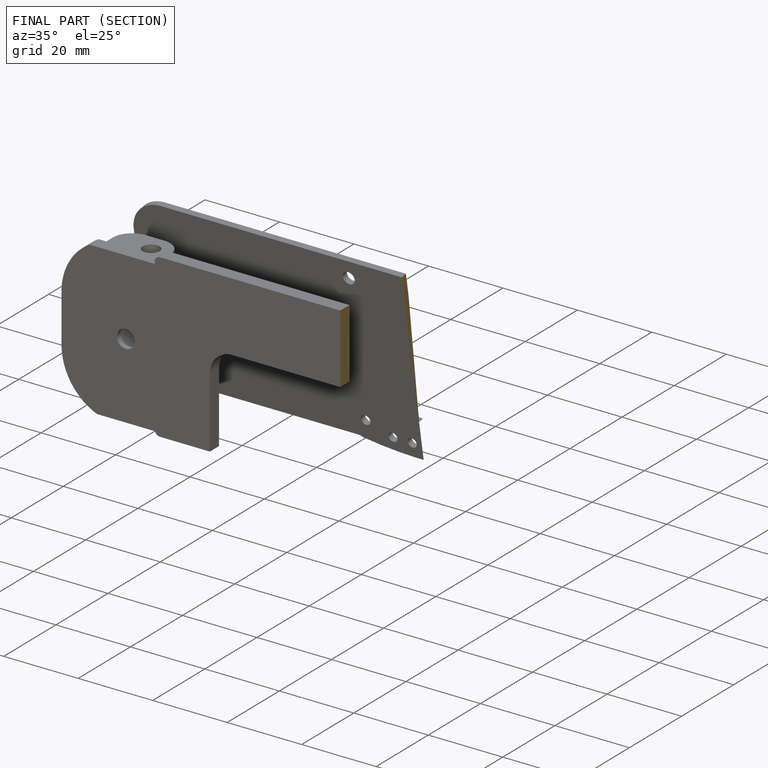
[diagram: finished part — half-section view (interior)]
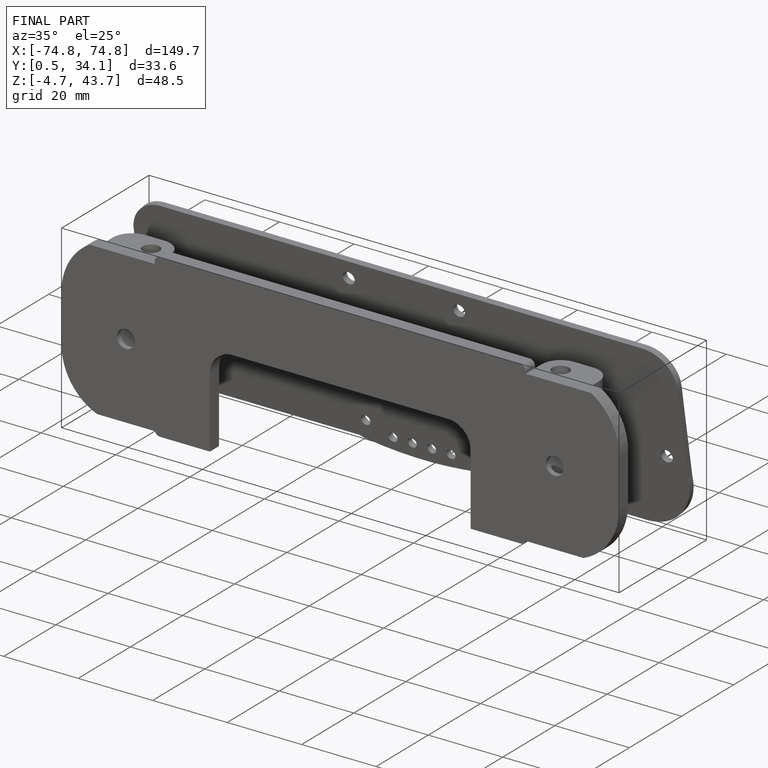
[diagram: finished part — iso view with bounding-box wireframe]
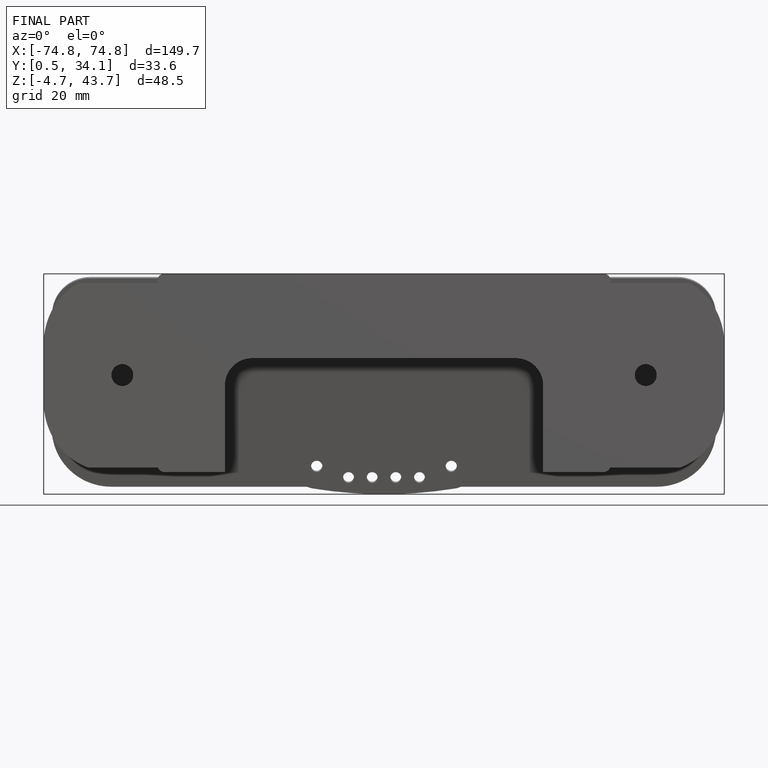
[diagram: finished part — front view with bounding-box wireframe]
